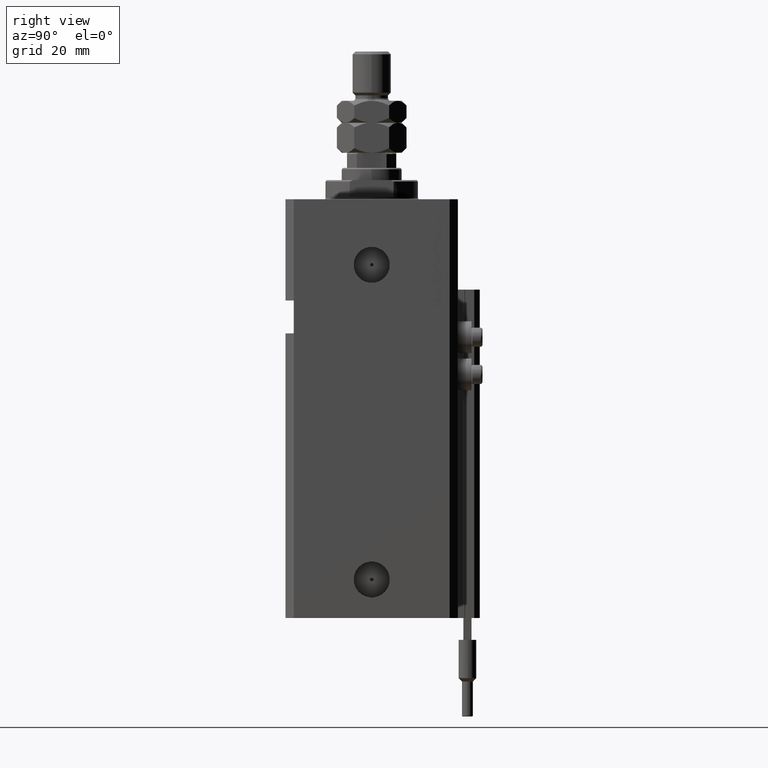
[diagram: clean part render]
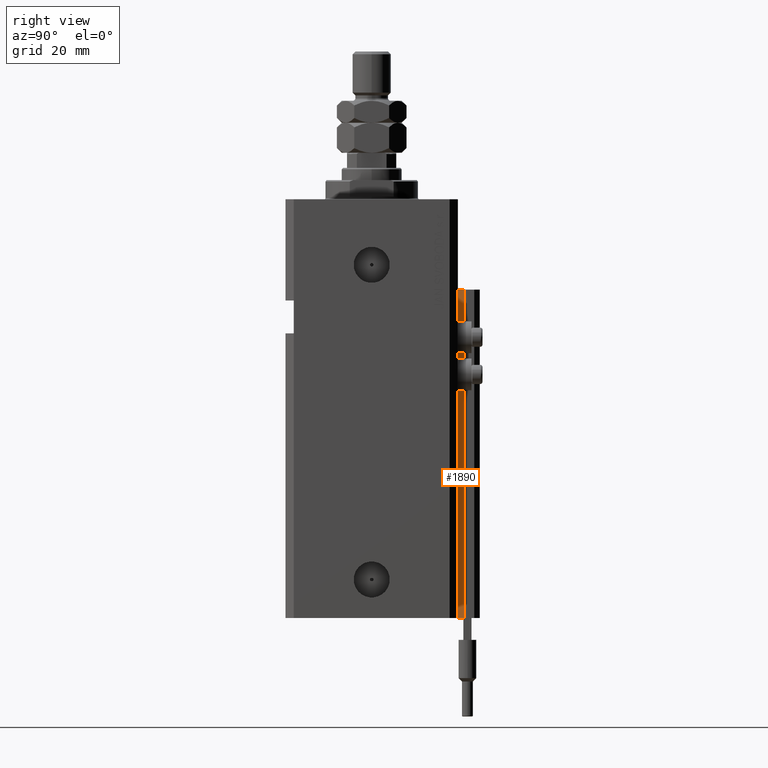
[diagram: same view with one face highlighted and labeled with its STEP entity id]
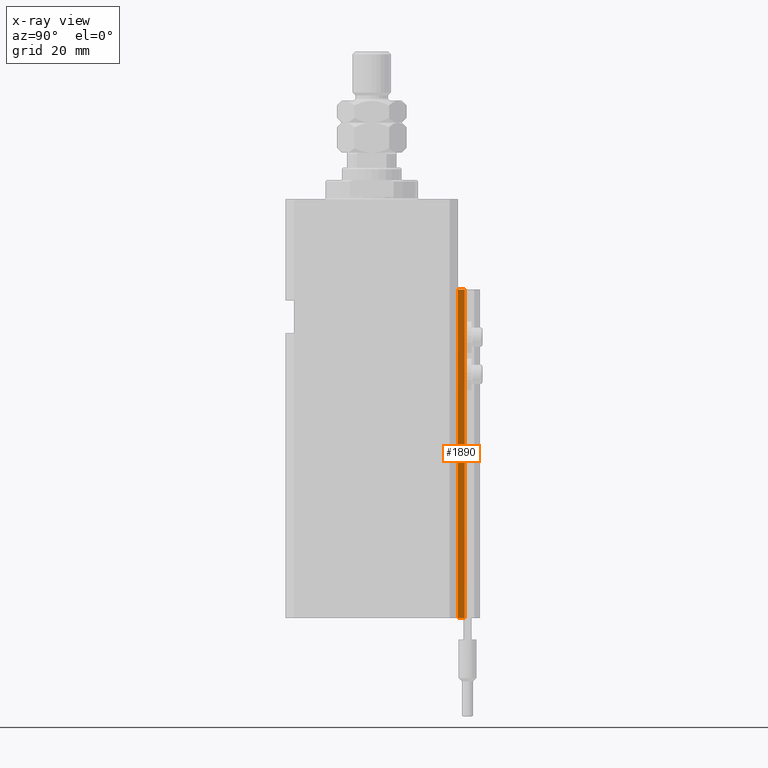
[diagram: x-ray of the same camera — body ghosted, the highlighted face saturated]
A machine part, right view. The second image highlights one B-rep face of the part: STEP entity #1890.
The next image is the same camera in x-ray: the body ghosted, the highlighted face saturated — about 0% of this face is hidden behind the body in this view.
In plain terms, the highlighted planar face has unit normal (1, 0, 0).
Its self-contained STEP definition (entity closure, byte-faithful):
#663 = EDGE_CURVE ( 'NONE', #44224, #25191, #33295, .T. ) ;
#1890 = ADVANCED_FACE ( 'NONE', ( #42907 ), #42402, .T. ) ;
#3667 = DIRECTION ( 'NONE',  ( 1.000000000000000000, 0.000000000000000000, 0.000000000000000000 ) ) ;
#3917 = ORIENTED_EDGE ( 'NONE', *, *, #19136, .F. ) ;
#3977 = ORIENTED_EDGE ( 'NONE', *, *, #6111, .T. ) ;
#6111 = EDGE_CURVE ( 'NONE', #41971, #44224, #50919, .T. ) ;
#7287 = CARTESIAN_POINT ( 'NONE',  ( 14.49999999999999645, 31.50000000000000000, -153.0000000000000000 ) ) ;
#7811 = CARTESIAN_POINT ( 'NONE',  ( 14.49999999999999645, 31.50000000000000000, -153.0000000000000000 ) ) ;
#7893 = CARTESIAN_POINT ( 'NONE',  ( 14.49999999999999645, 31.50000000000000000, -33.00000000000000000 ) ) ;
#12279 = CARTESIAN_POINT ( 'NONE',  ( 14.49999999999999645, 34.00000000000001421, -153.0000000000000000 ) ) ;
#16803 = VECTOR ( 'NONE', #20679, 1000.000000000000000 ) ;
#17921 = ORIENTED_EDGE ( 'NONE', *, *, #22724, .F. ) ;
#19136 = EDGE_CURVE ( 'NONE', #35201, #25191, #35767, .T. ) ;
#20679 = DIRECTION ( 'NONE',  ( 0.000000000000000000, 0.000000000000000000, 1.000000000000000000 ) ) ;
#20809 = CARTESIAN_POINT ( 'NONE',  ( 14.49999999999999645, 34.00000000000001421, -33.00000000000000000 ) ) ;
#21416 = DIRECTION ( 'NONE',  ( 0.000000000000000000, 0.000000000000000000, 1.000000000000000000 ) ) ;
#21785 = CARTESIAN_POINT ( 'NONE',  ( 14.49999999999999645, 31.50000000000000000, -33.00000000000000000 ) ) ;
#22724 = EDGE_CURVE ( 'NONE', #41971, #35201, #48299, .T. ) ;
#23297 = CARTESIAN_POINT ( 'NONE',  ( 14.49999999999999645, 31.50000000000000000, -153.0000000000000000 ) ) ;
#23565 = DIRECTION ( 'NONE',  ( 0.000000000000000000, 1.000000000000000000, 0.000000000000000000 ) ) ;
#25144 = AXIS2_PLACEMENT_3D ( 'NONE', #7287, #3667, #30016 ) ;
#25191 = VERTEX_POINT ( 'NONE', #20809 ) ;
#28687 = CARTESIAN_POINT ( 'NONE',  ( 14.49999999999999645, 31.50000000000000000, -153.0000000000000000 ) ) ;
#29433 = CARTESIAN_POINT ( 'NONE',  ( 14.49999999999999645, 34.00000000000001421, -153.0000000000000000 ) ) ;
#30016 = DIRECTION ( 'NONE',  ( 0.000000000000000000, 0.000000000000000000, -1.000000000000000000 ) ) ;
#33295 = LINE ( 'NONE', #29433, #35018 ) ;
#35018 = VECTOR ( 'NONE', #21416, 1000.000000000000000 ) ;
#35201 = VERTEX_POINT ( 'NONE', #21785 ) ;
#35510 = DIRECTION ( 'NONE',  ( 0.000000000000000000, 1.000000000000000000, 0.000000000000000000 ) ) ;
#35767 = LINE ( 'NONE', #7893, #41535 ) ;
#37537 = VECTOR ( 'NONE', #23565, 1000.000000000000000 ) ;
#41535 = VECTOR ( 'NONE', #35510, 1000.000000000000000 ) ;
#41971 = VERTEX_POINT ( 'NONE', #23297 ) ;
#42402 = PLANE ( 'NONE',  #25144 ) ;
#42656 = EDGE_LOOP ( 'NONE', ( #3917, #17921, #3977, #43985 ) ) ;
#42907 = FACE_OUTER_BOUND ( 'NONE', #42656, .T. ) ;
#43985 = ORIENTED_EDGE ( 'NONE', *, *, #663, .T. ) ;
#44224 = VERTEX_POINT ( 'NONE', #12279 ) ;
#48299 = LINE ( 'NONE', #28687, #16803 ) ;
#50919 = LINE ( 'NONE', #7811, #37537 ) ;